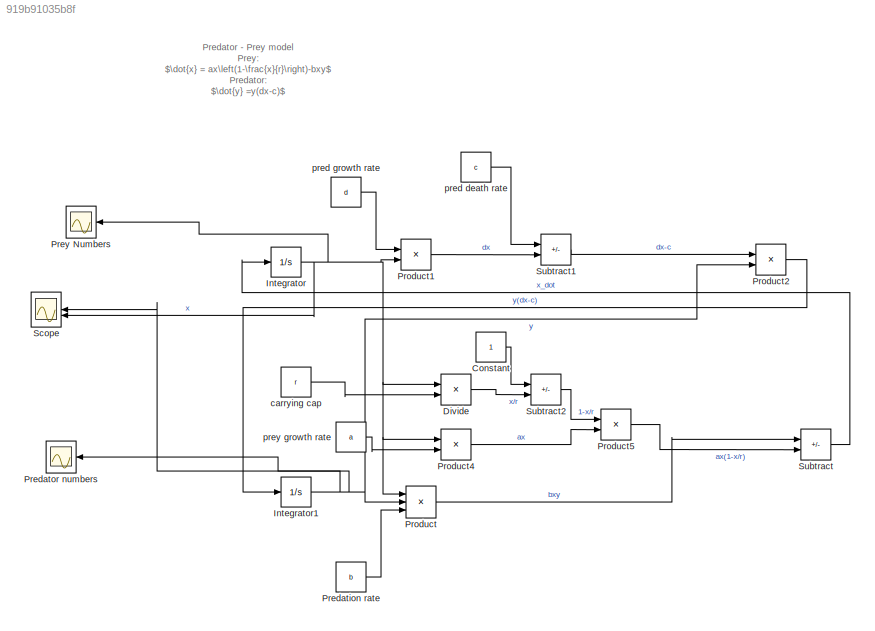
MODEL slx_919b91035b8f
KIND model
CONFIG AbsTol = auto
CONFIG EnableMultiTasking = off
CONFIG FixedStep = auto
CONFIG MaxStep = auto
CONFIG MinStep = auto
CONFIG RelTol = 1e-3
CONFIG SampleTimeConstraint = Unconstrained
CONFIG SolverName = VariableStepAuto
CONFIG StartTime = 0.0
CONFIG StopTime = 500
BLOCK [Constant] Constant
BLOCK [Product] Divide
  Inputs = */
BLOCK [Integrator] Integrator
  InitialCondition = 19000
BLOCK [Integrator] Integrator1
  InitialCondition = 25
BLOCK [Constant] Predation rate
  Value = b
BLOCK [Scope] Predator numbers
  Floating = off
  NumInputPorts = 1
  ScopeSpecificationString = Simulink.scopes.TimeScopeBlockCfg('CurrentConfiguration', extmgr.ConfigurationSet(extmgr.Configuration('Core','General UI',true),extmgr.Configuration('Core','Source UI',true),extmgr.Configuration('Sources','WiredSimulink',true,'DataLoggingVariableName','ScopeData1'),extmgr.Configuration('Visuals','Time Domain',true,'SerializedDisplays',{struct('MinYLimReal','-19.96593','MaxYLimReal','429.6934','YL...<+1366ch>
BLOCK [Scope] Prey Numbers
  Floating = off
  NumInputPorts = 1
  ScopeSpecificationString = Simulink.scopes.TimeScopeBlockCfg('CurrentConfiguration', extmgr.ConfigurationSet(extmgr.Configuration('Core','General UI',true),extmgr.Configuration('Core','Source UI',true),extmgr.Configuration('Sources','WiredSimulink',true,'DataLoggingVariableName','ScopeData2'),extmgr.Configuration('Visuals','Time Domain',true,'SerializedDisplays',{struct('MinYLimReal','-746.16169','MaxYLimReal','21194.01797'...<+1408ch>
BLOCK [Product] Product
  Inputs = 3
BLOCK [Product] Product1
BLOCK [Product] Product2
BLOCK [Product] Product4
BLOCK [Product] Product5
BLOCK [Scope] Scope
  Floating = off
  NumInputPorts = 2
  ScopeSpecificationString = Simulink.scopes.TimeScopeBlockCfg('CurrentConfiguration', extmgr.ConfigurationSet(extmgr.Configuration('Core','General UI',true),extmgr.Configuration('Core','Source UI',true),extmgr.Configuration('Sources','WiredSimulink',true),extmgr.Configuration('Visuals','Time Domain',true,'SerializedDisplays',{struct('MinYLimReal','-2346.875','MaxYLimReal','21371.875','YLabelReal','','MinYLimMag','  0.00000',...<+1366ch>
BLOCK [Sum] Subtract
  IconShape = rectangular
  Inputs = -+
BLOCK [Sum] Subtract1
  IconShape = rectangular
  Inputs = -+
BLOCK [Sum] Subtract2
  IconShape = rectangular
  Inputs = +-
BLOCK [Constant] carrying cap
  Value = r
BLOCK [Constant] pred death rate
  Value = c
BLOCK [Constant] pred growth rate
  Value = d
BLOCK [Constant] prey growth rate
  Value = a
ANNOTATION (root): Predator - Prey model Prey: $\dot{x} = ax\left(1-\frac{x}{r}\right)-bxy$ Predator: $\dot{y} =y(dx-c)$
LINE Constant:1 -> Subtract2:1
LINE Divide:1 -> Subtract2:2
NET Integrator1:1 -> Predator numbers:1, Product2:2, Product:2, Scope:1
NET Integrator:1 -> Divide:1, Prey Numbers:1, Product1:2, Product4:1, Product:1, Scope:2
LINE Predation rate:1 -> Product:3
LINE Product1:1 -> Subtract1:2
LINE Product2:1 -> Integrator1:1
LINE Product4:1 -> Product5:2
LINE Product5:1 -> Subtract:2
LINE Product:1 -> Subtract:1
LINE Subtract1:1 -> Product2:1
LINE Subtract2:1 -> Product5:1
LINE Subtract:1 -> Integrator:1
LINE carrying cap:1 -> Divide:2
LINE pred death rate:1 -> Subtract1:1
LINE pred growth rate:1 -> Product1:1
LINE prey growth rate:1 -> Product4:2
note: NET lines group one-source signal fan-out (src -> all destinations, sorted); 1:1 wires keep LINE
